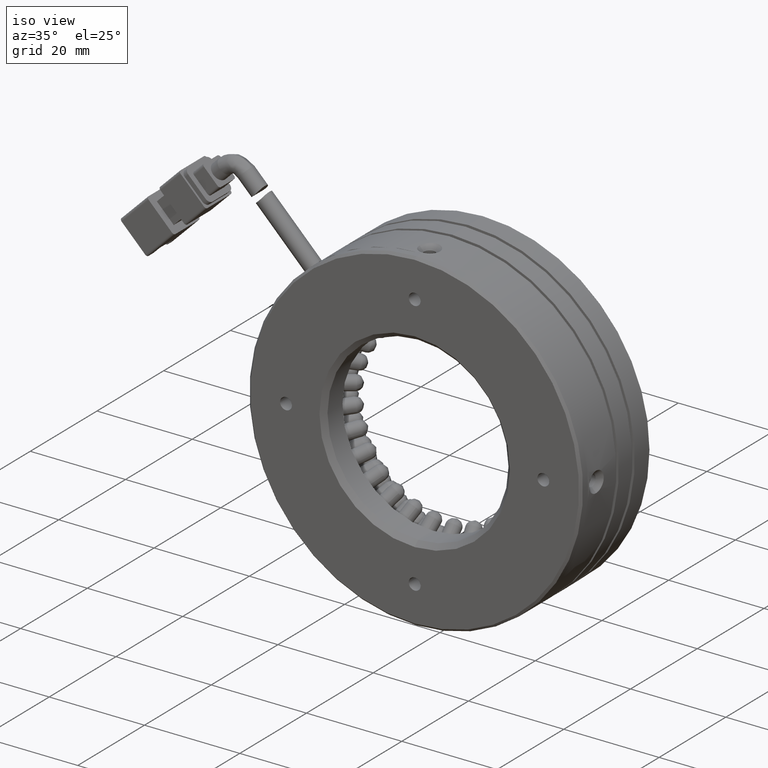
[diagram: clean part render]
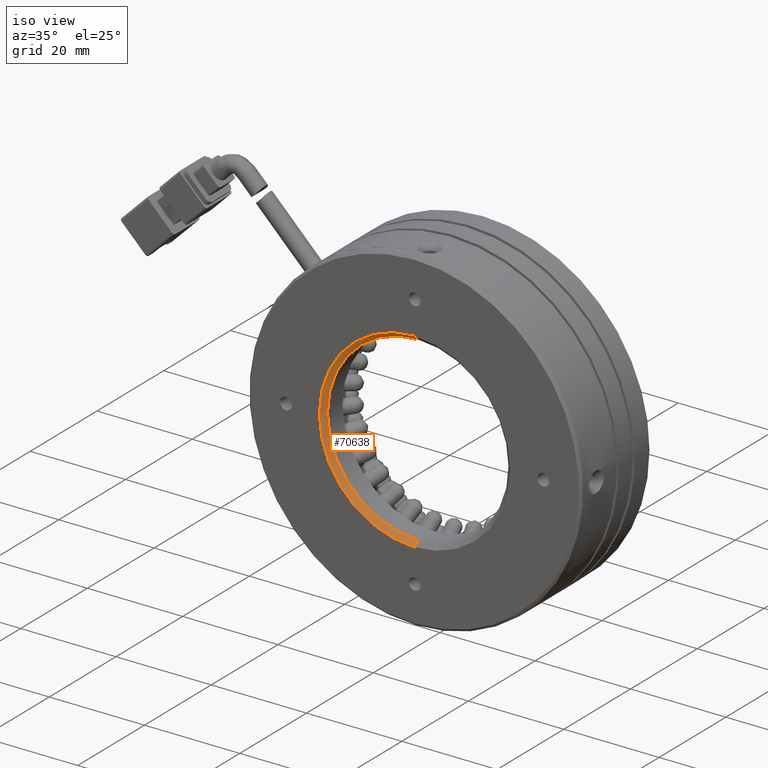
[diagram: same view with one face highlighted and labeled with its STEP entity id]
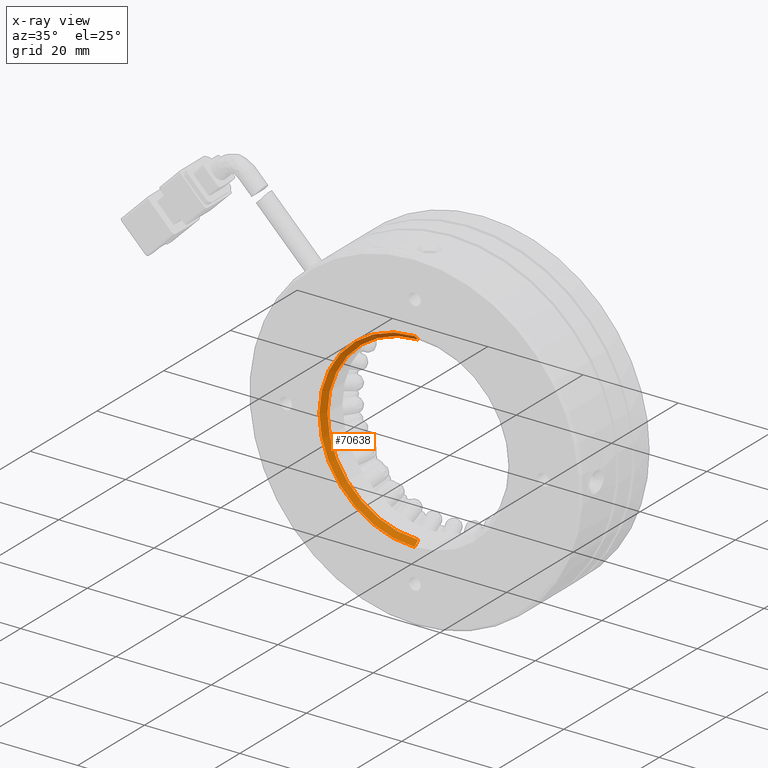
[diagram: x-ray of the same camera — body ghosted, the highlighted face saturated]
A machine part, iso view. The second image highlights one B-rep face of the part: STEP entity #70638.
The next image is the same camera in x-ray: the body ghosted, the highlighted face saturated — about 0% of this face is hidden behind the body in this view.
In plain terms, the highlighted conical surface has half-angle 45 deg.
Its self-contained STEP definition (entity closure, byte-faithful):
#2644 = LINE ( 'NONE', #69384, #20436 ) ;
#2913 = CARTESIAN_POINT ( 'NONE',  ( -2.716071020391492400, -2.692728664891314200, 18.99999999999999600 ) ) ;
#3827 = ORIENTED_EDGE ( 'NONE', *, *, #70691, .F. ) ;
#5444 = CARTESIAN_POINT ( 'NONE',  ( -2.716071020391492000, -3.692728664891308000, 20.00000000000001800 ) ) ;
#6161 = CARTESIAN_POINT ( 'NONE',  ( -2.716071020391494600, -2.692728664891314200, -18.99999999999999600 ) ) ;
#7472 = DIRECTION ( 'NONE',  ( 0.0000000000000000000, -1.000000000000000000, 0.0000000000000000000 ) ) ;
#8100 = EDGE_LOOP ( 'NONE', ( #61716, #28821, #23104, #3827 ) ) ;
#9467 = DIRECTION ( 'NONE',  ( 0.0000000000000000000, -0.7071067811865376900, -0.7071067811865574500 ) ) ;
#13467 = EDGE_CURVE ( 'NONE', #17007, #54829, #37862, .T. ) ;
#16874 = DIRECTION ( 'NONE',  ( 0.0000000000000000000, -1.000000000000000000, 0.0000000000000000000 ) ) ;
#17007 = VERTEX_POINT ( 'NONE', #2913 ) ;
#20436 = VECTOR ( 'NONE', #22498, 999.9999999999998900 ) ;
#21120 = EDGE_CURVE ( 'NONE', #79274, #49294, #67343, .T. ) ;
#22498 = DIRECTION ( 'NONE',  ( 8.659560562355054900E-017, -0.7071067811865376900, 0.7071067811865574500 ) ) ;
#23104 = ORIENTED_EDGE ( 'NONE', *, *, #21120, .T. ) ;
#28076 = CARTESIAN_POINT ( 'NONE',  ( -2.716071020391494600, -3.692728664891308000, 0.0000000000000000000 ) ) ;
#28821 = ORIENTED_EDGE ( 'NONE', *, *, #30977, .T. ) ;
#30782 = FACE_OUTER_BOUND ( 'NONE', #8100, .T. ) ;
#30977 = EDGE_CURVE ( 'NONE', #17007, #79274, #2644, .T. ) ;
#31384 = AXIS2_PLACEMENT_3D ( 'NONE', #57068, #16874, #63817 ) ;
#37862 = CIRCLE ( 'NONE', #31384, 18.99999999999999600 ) ;
#40235 = LINE ( 'NONE', #76300, #71658 ) ;
#41256 = DIRECTION ( 'NONE',  ( 0.0000000000000000000, -1.000000000000000000, 0.0000000000000000000 ) ) ;
#47630 = CARTESIAN_POINT ( 'NONE',  ( -2.716071020391494600, -3.692728664891308000, 0.0000000000000000000 ) ) ;
#49294 = VERTEX_POINT ( 'NONE', #61801 ) ;
#54369 = DIRECTION ( 'NONE',  ( 0.0000000000000000000, 0.0000000000000000000, -1.000000000000000000 ) ) ;
#54829 = VERTEX_POINT ( 'NONE', #6161 ) ;
#57068 = CARTESIAN_POINT ( 'NONE',  ( -2.716071020391494600, -2.692728664891314200, 0.0000000000000000000 ) ) ;
#61716 = ORIENTED_EDGE ( 'NONE', *, *, #13467, .F. ) ;
#61801 = CARTESIAN_POINT ( 'NONE',  ( -2.716071020391494600, -3.692728664891308000, -20.00000000000001800 ) ) ;
#63817 = DIRECTION ( 'NONE',  ( 0.0000000000000000000, 0.0000000000000000000, -1.000000000000000000 ) ) ;
#67343 = CIRCLE ( 'NONE', #82733, 20.00000000000001800 ) ;
#69384 = CARTESIAN_POINT ( 'NONE',  ( -2.716071020391492000, -3.692728664891308000, 20.00000000000001800 ) ) ;
#70638 = ADVANCED_FACE ( 'NONE', ( #30782 ), #73794, .F. ) ;
#70691 = EDGE_CURVE ( 'NONE', #54829, #49294, #40235, .T. ) ;
#71658 = VECTOR ( 'NONE', #9467, 999.9999999999998900 ) ;
#73794 = CONICAL_SURFACE ( 'NONE', #80541, 20.00000000000001800, 0.7853981633974621600 ) ;
#74936 = DIRECTION ( 'NONE',  ( 0.0000000000000000000, 0.0000000000000000000, -1.000000000000000000 ) ) ;
#76300 = CARTESIAN_POINT ( 'NONE',  ( -2.716071020391494600, -3.692728664891308000, -20.00000000000001800 ) ) ;
#79274 = VERTEX_POINT ( 'NONE', #5444 ) ;
#80541 = AXIS2_PLACEMENT_3D ( 'NONE', #28076, #41256, #74936 ) ;
#82733 = AXIS2_PLACEMENT_3D ( 'NONE', #47630, #7472, #54369 ) ;